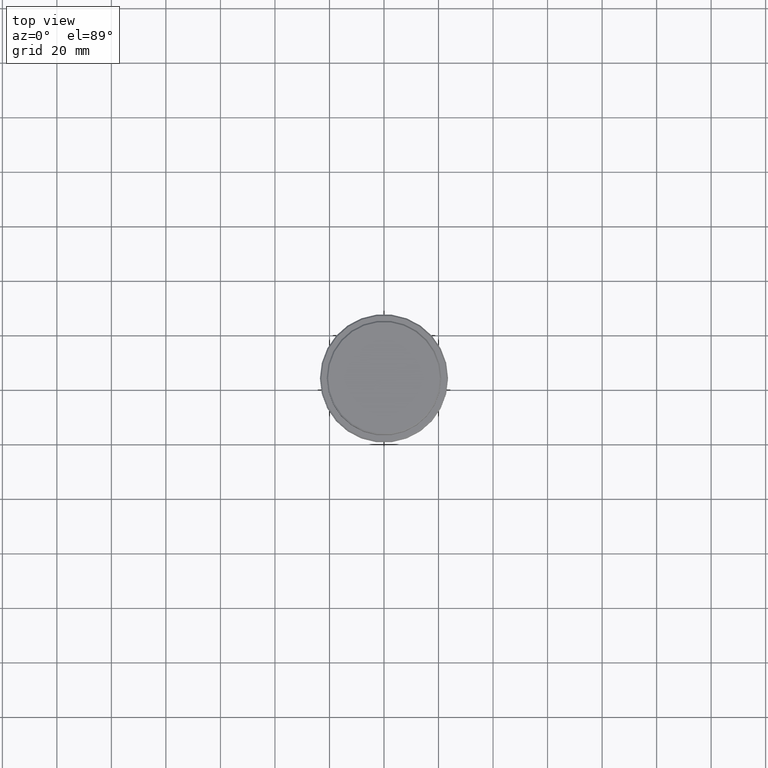
[diagram: clean part render]
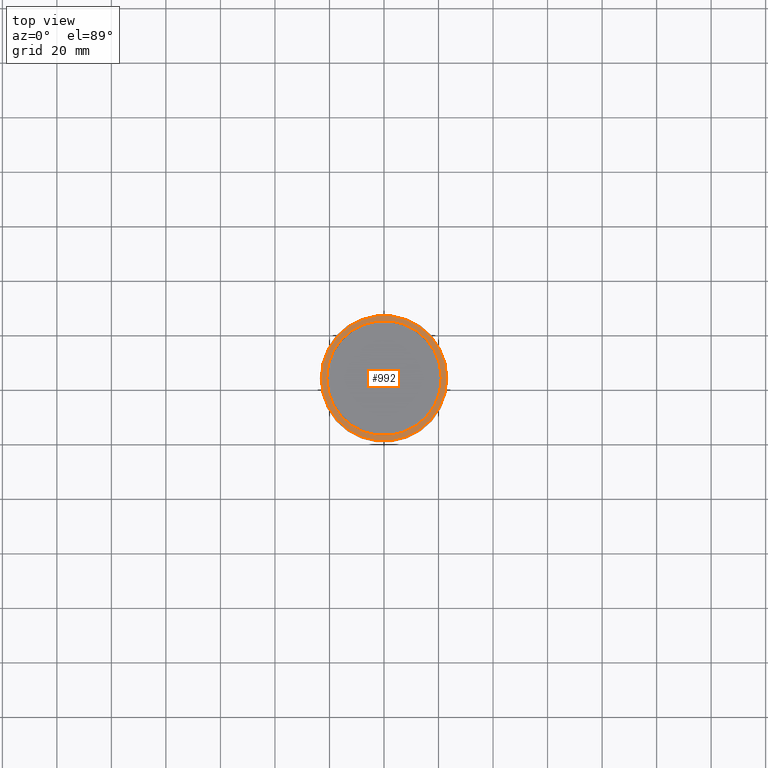
[diagram: same view with one face highlighted and labeled with its STEP entity id]
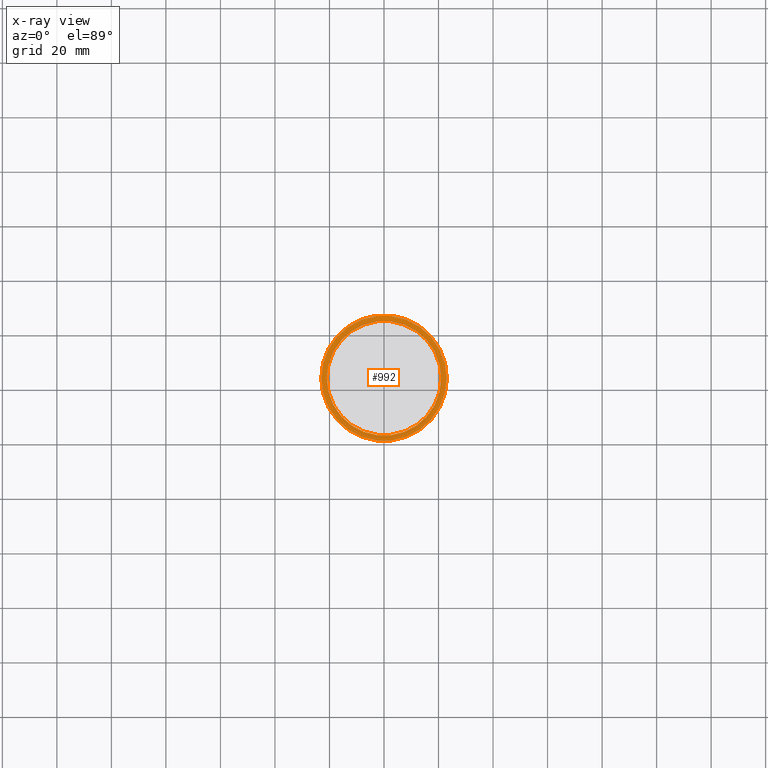
[diagram: x-ray of the same camera — body ghosted, the highlighted face saturated]
A machine part, top view. The second image highlights one B-rep face of the part: STEP entity #992.
The next image is the same camera in x-ray: the body ghosted, the highlighted face saturated — about 0% of this face is hidden behind the body in this view.
In plain terms, the highlighted planar face has unit normal (0, -0, 1).
Its self-contained STEP definition (entity closure, byte-faithful):
#2 = PLANE ( 'NONE',  #159 ) ;
#19 = DIRECTION ( 'NONE',  ( 0.000000000000000000, -0.000000000000000000, 1.000000000000000000 ) ) ;
#28 = DIRECTION ( 'NONE',  ( -0.000000000000000000, -0.000000000000000000, 1.000000000000000000 ) ) ;
#36 = EDGE_CURVE ( 'NONE', #1211, #845, #1371, .T. ) ;
#130 = AXIS2_PLACEMENT_3D ( 'NONE', #658, #1093, #664 ) ;
#156 = AXIS2_PLACEMENT_3D ( 'NONE', #647, #28, #787 ) ;
#159 = AXIS2_PLACEMENT_3D ( 'NONE', #1210, #19, #579 ) ;
#166 = ORIENTED_EDGE ( 'NONE', *, *, #239, .T. ) ;
#239 = EDGE_CURVE ( 'NONE', #1360, #788, #757, .T. ) ;
#244 = ORIENTED_EDGE ( 'NONE', *, *, #1291, .T. ) ;
#247 = CARTESIAN_POINT ( 'NONE',  ( 22.99999999999999645, 2.847303808017596139E-15, -9.000000000000001776 ) ) ;
#271 = CIRCLE ( 'NONE', #1057, 20.99999999999999289 ) ;
#306 = DIRECTION ( 'NONE',  ( 1.000000000000000000, 0.000000000000000000, 0.000000000000000000 ) ) ;
#431 = EDGE_CURVE ( 'NONE', #788, #1360, #912, .T. ) ;
#579 = DIRECTION ( 'NONE',  ( 1.000000000000000000, 0.000000000000000000, 0.000000000000000000 ) ) ;
#644 = FACE_OUTER_BOUND ( 'NONE', #745, .T. ) ;
#647 = CARTESIAN_POINT ( 'NONE',  ( 0.000000000000000000, 0.000000000000000000, -9.000000000000001776 ) ) ;
#658 = CARTESIAN_POINT ( 'NONE',  ( 0.000000000000000000, 0.000000000000000000, -9.000000000000001776 ) ) ;
#664 = DIRECTION ( 'NONE',  ( 1.000000000000000000, 0.000000000000000000, 0.000000000000000000 ) ) ;
#732 = DIRECTION ( 'NONE',  ( 0.000000000000000000, 0.000000000000000000, -1.000000000000000000 ) ) ;
#745 = EDGE_LOOP ( 'NONE', ( #840, #166 ) ) ;
#757 = CIRCLE ( 'NONE', #156, 22.99999999999999645 ) ;
#764 = FACE_BOUND ( 'NONE', #1255, .T. ) ;
#777 = DIRECTION ( 'NONE',  ( 1.000000000000000000, 0.000000000000000000, 0.000000000000000000 ) ) ;
#787 = DIRECTION ( 'NONE',  ( 1.000000000000000000, 0.000000000000000000, 0.000000000000000000 ) ) ;
#788 = VERTEX_POINT ( 'NONE', #1169 ) ;
#834 = CARTESIAN_POINT ( 'NONE',  ( 0.000000000000000000, 0.000000000000000000, -9.000000000000001776 ) ) ;
#840 = ORIENTED_EDGE ( 'NONE', *, *, #431, .T. ) ;
#845 = VERTEX_POINT ( 'NONE', #930 ) ;
#881 = ORIENTED_EDGE ( 'NONE', *, *, #36, .T. ) ;
#912 = CIRCLE ( 'NONE', #1387, 22.99999999999999645 ) ;
#930 = CARTESIAN_POINT ( 'NONE',  ( 20.99999999999999289, 0.000000000000000000, -9.000000000000001776 ) ) ;
#992 = ADVANCED_FACE ( 'NONE', ( #644, #764 ), #2, .T. ) ;
#1057 = AXIS2_PLACEMENT_3D ( 'NONE', #834, #732, #306 ) ;
#1093 = DIRECTION ( 'NONE',  ( 0.000000000000000000, 0.000000000000000000, -1.000000000000000000 ) ) ;
#1169 = CARTESIAN_POINT ( 'NONE',  ( -22.99999999999999645, 0.000000000000000000, -9.000000000000001776 ) ) ;
#1194 = CARTESIAN_POINT ( 'NONE',  ( 0.000000000000000000, 0.000000000000000000, -9.000000000000001776 ) ) ;
#1210 = CARTESIAN_POINT ( 'NONE',  ( 0.000000000000000000, 20.49999999999999645, -9.000000000000001776 ) ) ;
#1211 = VERTEX_POINT ( 'NONE', #1404 ) ;
#1214 = DIRECTION ( 'NONE',  ( -0.000000000000000000, -0.000000000000000000, 1.000000000000000000 ) ) ;
#1255 = EDGE_LOOP ( 'NONE', ( #244, #881 ) ) ;
#1291 = EDGE_CURVE ( 'NONE', #845, #1211, #271, .T. ) ;
#1360 = VERTEX_POINT ( 'NONE', #247 ) ;
#1371 = CIRCLE ( 'NONE', #130, 20.99999999999999289 ) ;
#1387 = AXIS2_PLACEMENT_3D ( 'NONE', #1194, #1214, #777 ) ;
#1404 = CARTESIAN_POINT ( 'NONE',  ( -20.99999999999999289, 2.571758278209440872E-15, -9.000000000000001776 ) ) ;